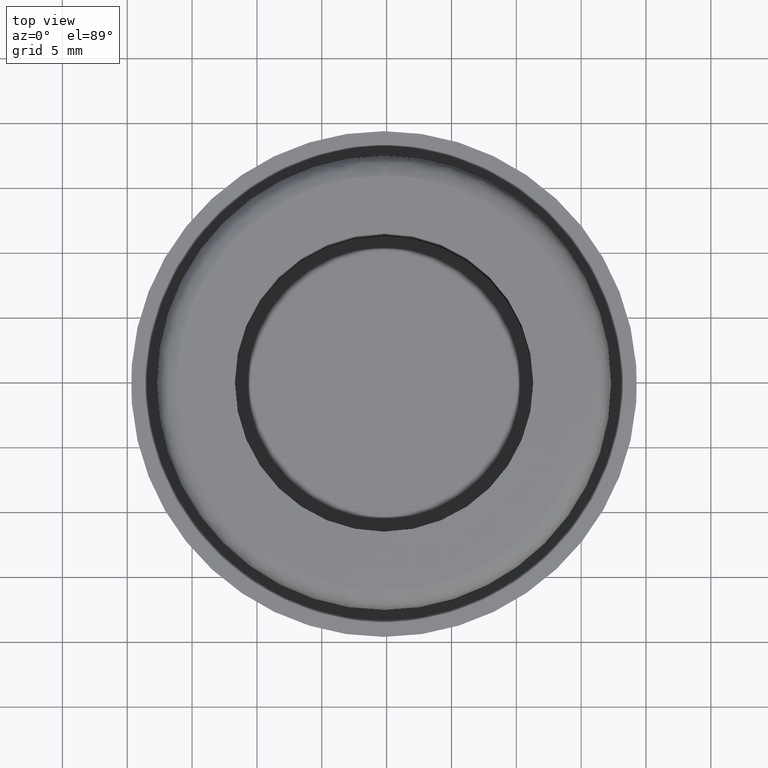
[diagram: clean part render]
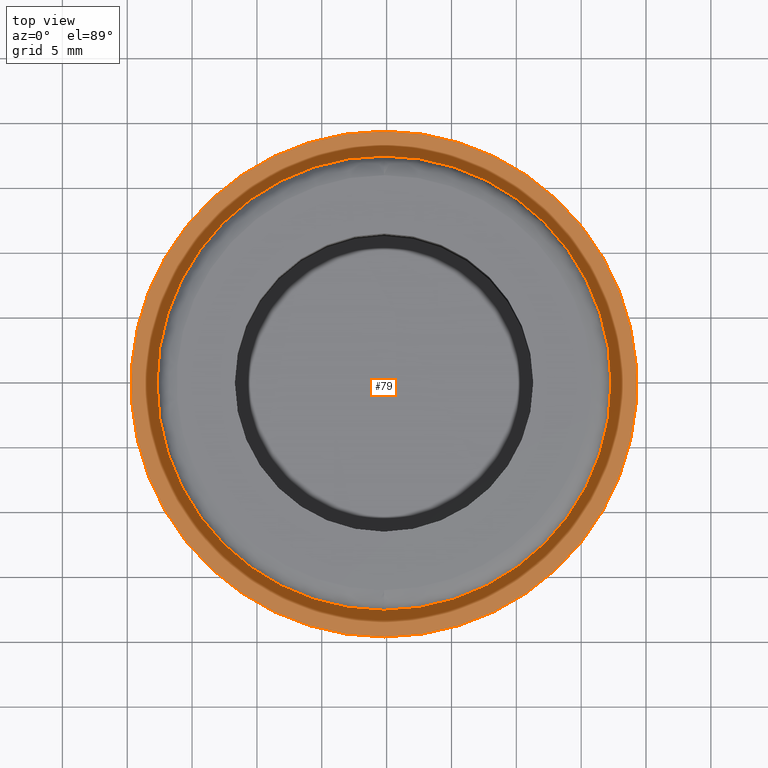
[diagram: same view with one face highlighted and labeled with its STEP entity id]
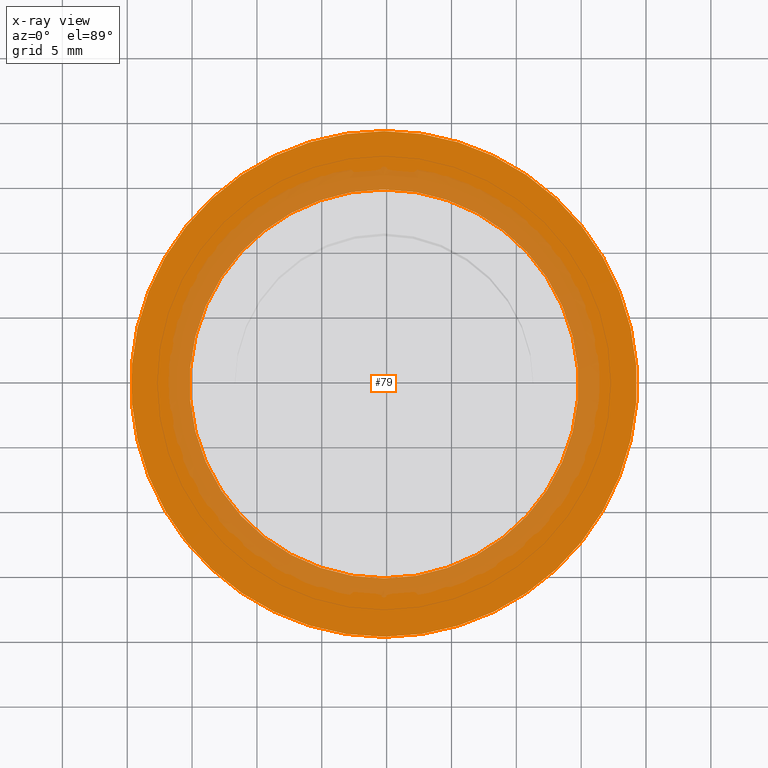
[diagram: x-ray of the same camera — body ghosted, the highlighted face saturated]
A machine part, top view. The second image highlights one B-rep face of the part: STEP entity #79.
The next image is the same camera in x-ray: the body ghosted, the highlighted face saturated — about 32% of this face is hidden behind the body in this view.
In plain terms, the highlighted planar face has unit normal (0, -0, 1).
Its self-contained STEP definition (entity closure, byte-faithful):
#79=ADVANCED_FACE('',(#140,#141),#139,.T.);
#139=PLANE('',#346);
#140=FACE_OUTER_BOUND('',#347,.T.);
#141=FACE_BOUND('',#348,.T.);
#343=CARTESIAN_POINT('',(-4.05299888971E+001,6.20000000000E+000,4.48500000000E+001));
#344=DIRECTION('',(0.00000000000E+000,-1.00000000000E+000,0.00000000000E+000));
#345=DIRECTION('',(0.00000000000E+000,0.00000000000E+000,-1.00000000000E+000));
#346=AXIS2_PLACEMENT_3D('',#343,#344,#345);
#347=EDGE_LOOP('',(#573,#574));
#348=EDGE_LOOP('',(#575,#576));
#573=ORIENTED_EDGE('',*,*,#657,.T.);
#574=ORIENTED_EDGE('',*,*,#658,.T.);
#575=ORIENTED_EDGE('',*,*,#659,.F.);
#576=ORIENTED_EDGE('',*,*,#660,.F.);
#657=EDGE_CURVE('',#771,#772,#773,.T.);
#658=EDGE_CURVE('',#772,#771,#779,.T.);
#659=EDGE_CURVE('',#785,#786,#787,.T.);
#660=EDGE_CURVE('',#786,#785,#793,.T.);
#771=VERTEX_POINT('',#1027);
#772=VERTEX_POINT('',#1028);
#773=CIRCLE('',#1032,1.95000000000E+001);
#779=CIRCLE('',#1036,1.95000000000E+001);
#785=VERTEX_POINT('',#1037);
#786=VERTEX_POINT('',#1038);
#787=CIRCLE('',#1042,1.50000000000E+001);
#793=CIRCLE('',#1046,1.50000000000E+001);
#1027=CARTESIAN_POINT('',(0.00000000000E+000,6.20000000000E+000,-1.95000000000E+001));
#1028=CARTESIAN_POINT('',(1.18423789293E-015,6.20000000000E+000,1.95000000000E+001));
#1029=CARTESIAN_POINT('',(0.00000000000E+000,6.20000000000E+000,0.00000000000E+000));
#1030=DIRECTION('',(0.00000000000E+000,-1.00000000000E+000,-0.00000000000E+000));
#1031=DIRECTION('',(-1.22460635382E-016,0.00000000000E+000,-1.00000000000E+000));
#1032=AXIS2_PLACEMENT_3D('',#1029,#1030,#1031);
#1033=CARTESIAN_POINT('',(0.00000000000E+000,6.20000000000E+000,0.00000000000E+000));
#1034=DIRECTION('',(0.00000000000E+000,-1.00000000000E+000,-0.00000000000E+000));
#1035=DIRECTION('',(-1.22460635382E-016,0.00000000000E+000,-1.00000000000E+000));
#1036=AXIS2_PLACEMENT_3D('',#1033,#1034,#1035);
#1037=CARTESIAN_POINT('',(1.18423789293E-015,6.20000000000E+000,-1.50000000000E+001));
#1038=CARTESIAN_POINT('',(1.83690953073E-015,6.20000000000E+000,1.50000000000E+001));
#1039=CARTESIAN_POINT('',(0.00000000000E+000,6.20000000000E+000,0.00000000000E+000));
#1040=DIRECTION('',(0.00000000000E+000,-1.00000000000E+000,0.00000000000E+000));
#1041=DIRECTION('',(-0.00000000000E+000,-0.00000000000E+000,1.00000000000E+000));
#1042=AXIS2_PLACEMENT_3D('',#1039,#1040,#1041);
#1043=CARTESIAN_POINT('',(0.00000000000E+000,6.20000000000E+000,0.00000000000E+000));
#1044=DIRECTION('',(0.00000000000E+000,-1.00000000000E+000,0.00000000000E+000));
#1045=DIRECTION('',(-0.00000000000E+000,-0.00000000000E+000,1.00000000000E+000));
#1046=AXIS2_PLACEMENT_3D('',#1043,#1044,#1045);